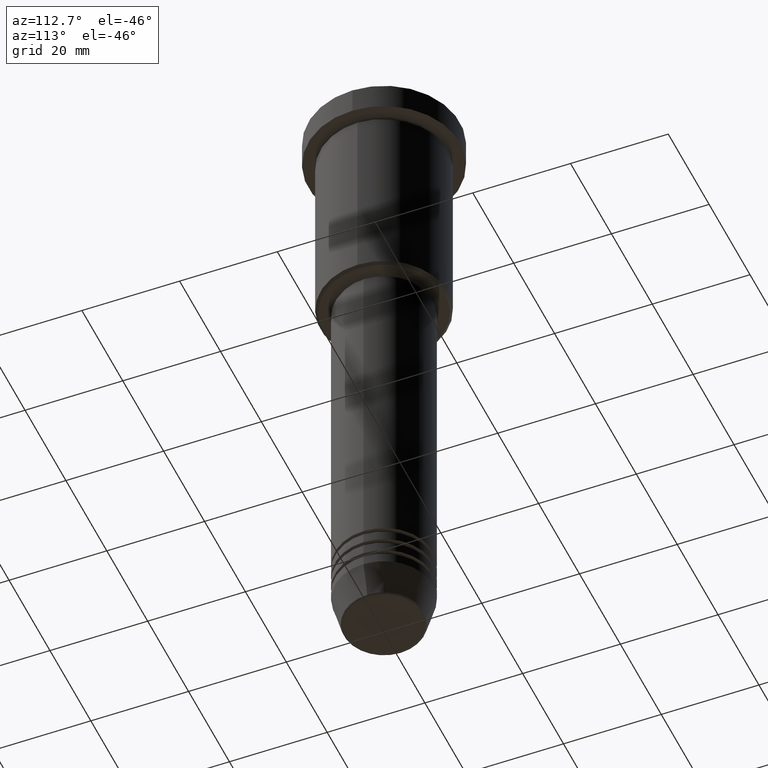
[diagram: clean part render]
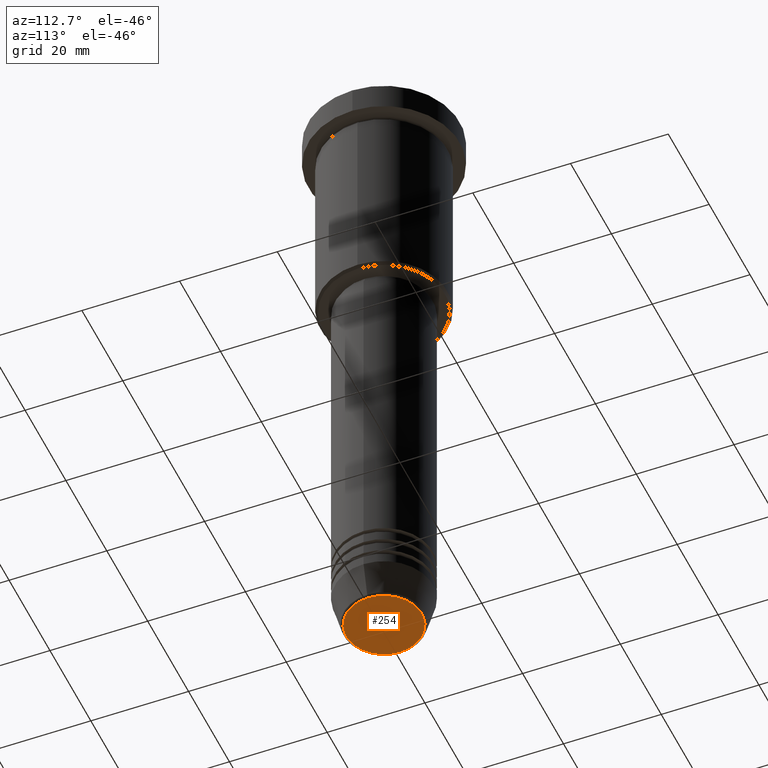
[diagram: same view with one face highlighted and labeled with its STEP entity id]
A machine part, auxiliary view. The second image highlights one B-rep face of the part: STEP entity #254.
In plain terms, the highlighted planar face has unit normal (0, -0, 1).
Its self-contained STEP definition (entity closure, byte-faithful):
#21 = DIRECTION ( 'NONE',  ( 1.000000000000000000, 0.000000000000000000, 0.000000000000000000 ) ) ;
#136 = AXIS2_PLACEMENT_3D ( 'NONE', #471, #848, #21 ) ;
#254 = ADVANCED_FACE ( 'NONE', ( #1159 ), #804, .F. ) ;
#306 = EDGE_CURVE ( 'NONE', #582, #1041, #653, .T. ) ;
#323 = DIRECTION ( 'NONE',  ( 1.000000000000000000, 0.000000000000000000, 0.000000000000000000 ) ) ;
#441 = AXIS2_PLACEMENT_3D ( 'NONE', #962, #1155, #323 ) ;
#471 = CARTESIAN_POINT ( 'NONE',  ( 0.000000000000000000, 0.000000000000000000, -131.0000000000000000 ) ) ;
#487 = EDGE_CURVE ( 'NONE', #1041, #582, #776, .T. ) ;
#538 = DIRECTION ( 'NONE',  ( 1.000000000000000000, 0.000000000000000000, 0.000000000000000000 ) ) ;
#582 = VERTEX_POINT ( 'NONE', #993 ) ;
#615 = ORIENTED_EDGE ( 'NONE', *, *, #306, .T. ) ;
#620 = DIRECTION ( 'NONE',  ( 0.000000000000000000, -0.000000000000000000, 1.000000000000000000 ) ) ;
#653 = CIRCLE ( 'NONE', #136, 7.740692158992654726 ) ;
#663 = ORIENTED_EDGE ( 'NONE', *, *, #487, .T. ) ;
#776 = CIRCLE ( 'NONE', #441, 7.740692158992654726 ) ;
#804 = PLANE ( 'NONE',  #868 ) ;
#848 = DIRECTION ( 'NONE',  ( 0.000000000000000000, 0.000000000000000000, -1.000000000000000000 ) ) ;
#868 = AXIS2_PLACEMENT_3D ( 'NONE', #1072, #620, #538 ) ;
#960 = EDGE_LOOP ( 'NONE', ( #663, #615 ) ) ;
#962 = CARTESIAN_POINT ( 'NONE',  ( 0.000000000000000000, 0.000000000000000000, -131.0000000000000000 ) ) ;
#993 = CARTESIAN_POINT ( 'NONE',  ( -7.740692158992654726, 9.775343368540039135E-16, -131.0000000000000000 ) ) ;
#1041 = VERTEX_POINT ( 'NONE', #1163 ) ;
#1072 = CARTESIAN_POINT ( 'NONE',  ( 0.000000000000000000, 0.000000000000000000, -131.0000000000000000 ) ) ;
#1155 = DIRECTION ( 'NONE',  ( 0.000000000000000000, 0.000000000000000000, -1.000000000000000000 ) ) ;
#1159 = FACE_OUTER_BOUND ( 'NONE', #960, .T. ) ;
#1163 = CARTESIAN_POINT ( 'NONE',  ( 7.740692158992654726, 0.000000000000000000, -131.0000000000000000 ) ) ;